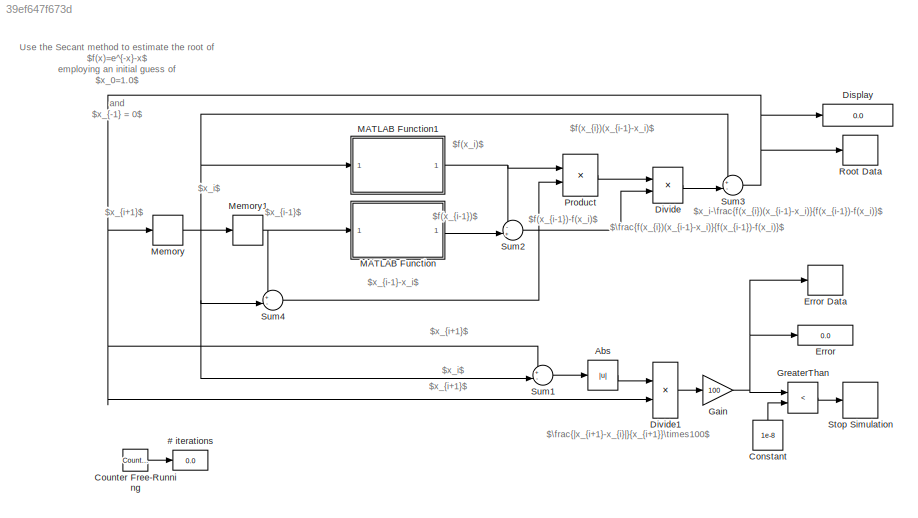
MODEL slx_39ef647f673d
KIND model
CONFIG AbsTol = auto
CONFIG EnableMultiTasking = off
CONFIG FixedStep = 1
CONFIG MaxStep = auto
CONFIG MinStep = auto
CONFIG RelTol = 1e-3
CONFIG SampleTimeConstraint = Unconstrained
CONFIG SolverName = FixedStepDiscrete
CONFIG StartTime = 0.0
CONFIG StopTime = inf
BLOCK [Display] # iterations
  Decimation = 1
  Ports = [1]
BLOCK [Abs] Abs
  SaturateOnIntegerOverflow = off
BLOCK [Constant] Constant
  NameLocation = right
  Value = 1e-8
BLOCK [Reference] Counter Free-Running  REF=simulink/Sources/Counter
Free-Running
  Ports = [0, 1]
  SourceBlock = simulink/Sources/Counter\nFree-Running
  SourceProductBaseCode = SL
  SourceType = Counter Free-Running
BLOCK [Display] Display
  Decimation = 1
  Ports = [1]
BLOCK [Product] Divide
  Inputs = */
  Ports = [2, 1]
BLOCK [Product] Divide1
  Inputs = */
  Ports = [2, 1]
BLOCK [Display] Error
  Decimation = 1
  Ports = [1]
BLOCK [Record] Error Data
  FileSettingsInternal = {"entries":[{"content":{"excelSettings":{"content":{},"type":"Streamout.ExcelSettings"}},"type":"Streamout.FileSettingStorage","uuid":"ce780b49-f8fc-47f1-a22b-1c643ce1729d"}],"packageUris":["http://schema.mathworks.com/mf0/streamout_blocks/R2020a"],"version":"1.0"}
  Ports = [1]
  SignalsInternal = {"entries":[{"content":{"signals":[{"content":{"blockPath":["secant/Error Data"],"channel":[],"dimensions":[1],"domain":"secant/error data","lineColor":"#fe330a","plots":[1],"port":1,"sid":[],"signalID":336,"signalName":"Gain"},"type":"RecordBlkView.Signal","uuid":"27531e50-fd39-4feb-8290-fe6a89478337"}]},"type":"RecordBlkView.InputSignals","uuid":"8fc0a6ad-9e9e-4774-b9d4-871cbd668533"}],"packageU...<+81ch>
  VisualizationBindings = {"sparklinesplugin":{"info":[{"bindingParametersList":[],"subplotID":1}]}}
BLOCK [Gain] Gain
  Gain = 100
BLOCK [RelationalOperator] GreaterThan
  InputSameDT = off
  Operator = <
  OutDataTypeStr = boolean
  Ports = [2, 1]
  RndMeth = Simplest
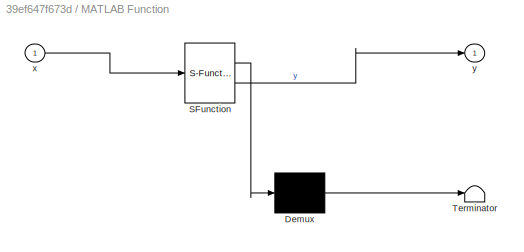
BLOCK [SubSystem] MATLAB Function
  ErrorFcn = Stateflow.Translate.translate
  PermitHierarchicalResolution = ExplicitOnly
  Ports = [1, 1]
  RequestExecContextInheritance = off
  SFBlockType = MATLAB Function
  TreatAsAtomicUnit = on
BLOCK [Demux] MATLAB Function/ Demux 
  Outputs = 1
  Ports = [1, 1]
BLOCK [S-Function] MATLAB Function/ SFunction 
  EnableBusSupport = on
  FunctionName = sf_sfun
  PortCounts = [1 2]
  Ports = [1, 2]
  SFcnIsStateOwnerBlock = off
  SFunctionDeploymentMode = off
  Tag = Stateflow S-Function 2
BLOCK [Terminator] MATLAB Function/ Terminator 
BLOCK [Inport] MATLAB Function/x
BLOCK [Outport] MATLAB Function/y
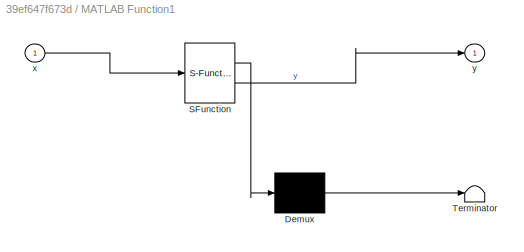
BLOCK [SubSystem] MATLAB Function1
  ErrorFcn = Stateflow.Translate.translate
  PermitHierarchicalResolution = ExplicitOnly
  Ports = [1, 1]
  RequestExecContextInheritance = off
  SFBlockType = MATLAB Function
  TreatAsAtomicUnit = on
BLOCK [Demux] MATLAB Function1/ Demux 
  Outputs = 1
  Ports = [1, 1]
BLOCK [S-Function] MATLAB Function1/ SFunction 
  EnableBusSupport = on
  FunctionName = sf_sfun
  PortCounts = [1 2]
  Ports = [1, 2]
  SFcnIsStateOwnerBlock = off
  SFunctionDeploymentMode = off
  Tag = Stateflow S-Function 1
BLOCK [Terminator] MATLAB Function1/ Terminator 
BLOCK [Inport] MATLAB Function1/x
BLOCK [Outport] MATLAB Function1/y
BLOCK [Memory] Memory
  InitialCondition = 1
BLOCK [Memory] Memory1
BLOCK [Product] Product
  Ports = [2, 1]
BLOCK [Record] Root Data
  FileSettingsInternal = {"entries":[{"content":{"excelSettings":{"content":{},"type":"Streamout.ExcelSettings"}},"type":"Streamout.FileSettingStorage","uuid":"bc5a132c-1ffa-4a8c-89b3-128a7b384f57"}],"packageUris":["http://schema.mathworks.com/mf0/streamout_blocks/R2020a"],"version":"1.0"}
  Ports = [1]
  SignalsInternal = {"entries":[{"content":{"signals":[{"content":{"blockPath":["secant/Root Data"],"channel":[],"dimensions":[1],"domain":"secant/root data","lineColor":"#b746ff","plots":[1],"port":1,"sid":[],"signalID":331,"signalName":"Sum3"},"type":"RecordBlkView.Signal","uuid":"a6dccb1b-d194-4500-9bdc-5b1c450104aa"}]},"type":"RecordBlkView.InputSignals","uuid":"f65f23b5-17ad-494b-b8e5-e99a9e1211db"}],"packageUri...<+79ch>
  VisualizationBindings = {"sparklinesplugin":{"info":[{"bindingParametersList":[],"subplotID":1}]}}
BLOCK [Stop] Stop Simulation
BLOCK [Sum] Sum1
  Inputs = +-|
  Ports = [2, 1]
BLOCK [Sum] Sum2
  Inputs = -+|
  Ports = [2, 1]
BLOCK [Sum] Sum3
  Inputs = +-|
  Ports = [2, 1]
BLOCK [Sum] Sum4
  Inputs = +-|
  Ports = [2, 1]
ANNOTATION (root): $\frac{f(x_{i})(x_{i-1}-x_i)}{f(x_{i-1})-f(x_i)}$
ANNOTATION (root): $\frac{|x_{i+1}-x_{i}|}{x_{i+1}}\times100$
ANNOTATION (root): $f(x_i)$
ANNOTATION (root): $f(x_{i-1})$
ANNOTATION (root): $f(x_{i-1})-f(x_i)$
ANNOTATION (root): $f(x_{i})(x_{i-1}-x_i)$
ANNOTATION (root): $x_i$
ANNOTATION (root): $x_i-\frac{f(x_{i})(x_{i-1}-x_i)}{f(x_{i-1})-f(x_i)}$
ANNOTATION (root): $x_{i+1}$
ANNOTATION (root): $x_{i-1}$
ANNOTATION (root): $x_{i-1}-x_i$
ANNOTATION (root): Use the Secant method to estimate the root of $f(x)=e^{-x}-x$ employing an initial guess of $x_0=1.0$ and $x_{-1} = 0$ .
LINE Abs:1 -> Divide1:1
LINE Constant:1 -> GreaterThan:2
LINE Counter Free-Running:1 -> # iterations:1
LINE Divide1:1 -> Gain:1
LINE Divide:1 -> Sum3:2
NET Gain:1 -> Error Data:1, Error:1, GreaterThan:1
LINE GreaterThan:1 -> Stop Simulation:1
NET MATLAB Function1:1 -> Product:1, Sum2:1
LINE MATLAB Function:1 -> Sum2:2
NET Memory1:1 -> MATLAB Function:1, Sum4:1
NET Memory:1 -> MATLAB Function1:1, Memory1:1, Sum1:2, Sum3:1, Sum4:2
LINE Product:1 -> Divide:1
LINE Sum1:1 -> Abs:1
LINE Sum2:1 -> Divide:2
NET Sum3:1 -> Display:1, Divide1:2, Memory:1, Root Data:1, Sum1:1
LINE Sum4:1 -> Product:2
note: NET lines group one-source signal fan-out (src -> all destinations, sorted); 1:1 wires keep LINE
CHART MATLAB Function states=1 transitions=1
  STATE_LABEL 'eML_blk_kernel()'
  STATE_LABEL 'SCRIPT:\nfunction y = f(x)\n\ny = exp(-x)-x;\n'
CHART MATLAB Function1 states=1 transitions=1
  STATE_LABEL 'eML_blk_kernel()'
  STATE_LABEL 'SCRIPT:\nfunction y = f(x)\n\ny = exp(-x)-x;\n'
CHART  states=0 transitions=0
CHART  states=0 transitions=0
